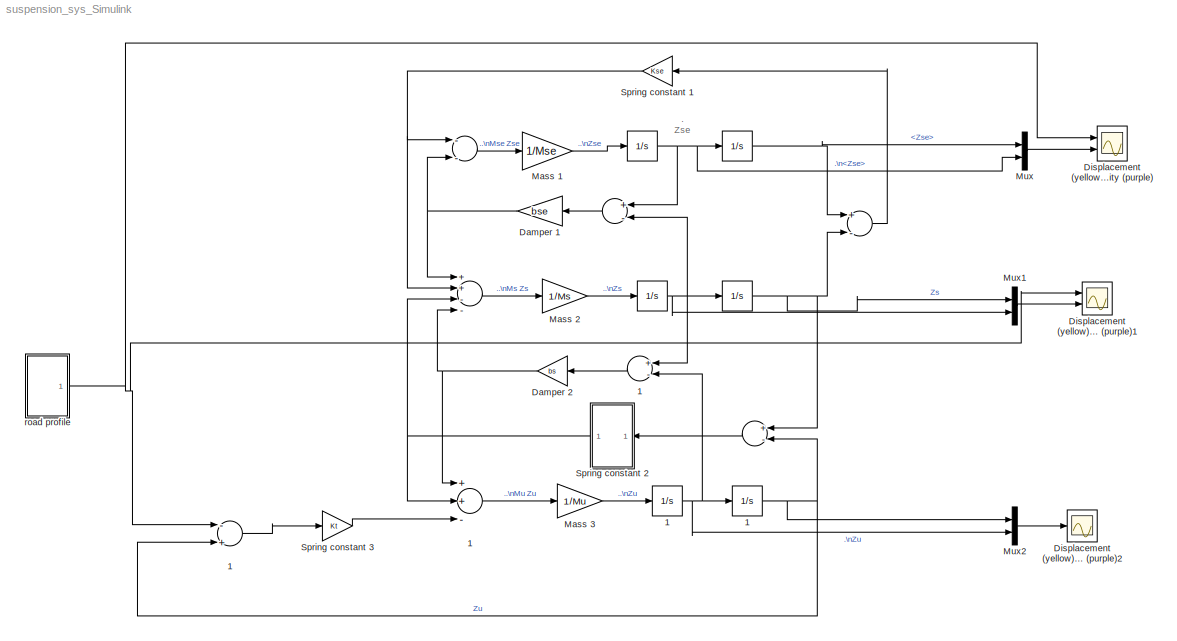
MODEL suspension_sys_Simulink
KIND model
BLOCK [Integrator]  
  Ports = [1, 1]
  SID = 1
BLOCK [Sum]   
  InputSameDT = off
  Inputs = +-
  OutDataTypeStr = Inherit: Inherit via internal rule
  Ports = [2, 1]
  SID = 2
  SaturateOnIntegerOverflow = off
BLOCK [Integrator]      
  Ports = [1, 1]
  SID = 3
BLOCK [Sum]       
  InputSameDT = off
  Inputs = ++--
  OutDataTypeStr = Inherit: Inherit via internal rule
  Ports = [4, 1]
  SID = 4
  SaturateOnIntegerOverflow = off
BLOCK [Sum]        
  InputSameDT = off
  Inputs = --
  OutDataTypeStr = Inherit: Inherit via internal rule
  Ports = [2, 1]
  SID = 5
  SaturateOnIntegerOverflow = off
BLOCK [Sum]         
  InputSameDT = off
  Inputs = +-
  OutDataTypeStr = Inherit: Inherit via internal rule
  Ports = [2, 1]
  SID = 6
  SaturateOnIntegerOverflow = off
BLOCK [Integrator]          
  Ports = [1, 1]
  SID = 7
BLOCK [Integrator]           
  Ports = [1, 1]
  SID = 8
BLOCK [Sum]              
  InputSameDT = off
  Inputs = +-
  OutDataTypeStr = Inherit: Inherit via internal rule
  Ports = [2, 1]
  SID = 9
  SaturateOnIntegerOverflow = off
BLOCK [Sum]              1
  InputSameDT = off
  Inputs = +-
  OutDataTypeStr = Inherit: Inherit via internal rule
  Ports = [2, 1]
  SID = 10
  SaturateOnIntegerOverflow = off
BLOCK [Integrator]           1
  Ports = [1, 1]
  SID = 11
BLOCK [Integrator]          1
  Ports = [1, 1]
  SID = 12
BLOCK [Sum]        1
  InputSameDT = off
  Inputs = -+
  OutDataTypeStr = Inherit: Inherit via internal rule
  Ports = [2, 1]
  SID = 13
  SaturateOnIntegerOverflow = off
BLOCK [Sum]       1
  InputSameDT = off
  Inputs = ++-
  OutDataTypeStr = Inherit: Inherit via internal rule
  Ports = [3, 1]
  SID = 14
  SaturateOnIntegerOverflow = off
BLOCK [Gain] Damper 1
  Gain = bse
  OutDataTypeStr = Inherit: Inherit via internal rule
  ParamDataTypeStr = Inherit: Inherit via internal rule
  SID = 16
  SaturateOnIntegerOverflow = off
BLOCK [Gain] Damper 2
  Gain = bs
  OutDataTypeStr = Inherit: Inherit via internal rule
  ParamDataTypeStr = Inherit: Inherit via internal rule
  SID = 17
  SaturateOnIntegerOverflow = off
BLOCK [Scope] Displacement (yellow)\nVelocity (purple)
  Floating = off
  NumInputPorts = 2
  Ports = [2]
  SID = 18
  ScopeSpecificationString = Simulink.scopes.TimeScopeBlockCfg('CurrentConfiguration', extmgr.ConfigurationSet(extmgr.Configuration('Core','General UI',true),extmgr.Configuration('Core','Source UI',true),extmgr.Configuration('Sources','WiredSimulink',true,'DataLoggingVariableName','ScopeData1','DataLoggingSaveFormat','StructureWithTime','DataLoggingLimitDataPoints',true,'DataLoggingDecimation','1','DataLoggingDecimateData',tr...<+2264ch>
BLOCK [Scope] Displacement (yellow)\nVelocity (purple)1
  Floating = off
  NumInputPorts = 2
  Ports = [2]
  SID = 19
  ScopeSpecificationString = Simulink.scopes.TimeScopeBlockCfg('CurrentConfiguration', extmgr.ConfigurationSet(extmgr.Configuration('Core','General UI',true),extmgr.Configuration('Core','Source UI',true),extmgr.Configuration('Sources','WiredSimulink',true,'DataLoggingSaveFormat','StructureWithTime','DataLoggingLimitDataPoints',true,'DataLoggingDecimation','1','DataLoggingDecimateData',true),extmgr.Configuration('Visuals','Tim...<+2428ch>
BLOCK [Scope] Displacement (yellow)\nVelocity (purple)2
  Floating = off
  NumInputPorts = 1
  Ports = [1]
  SID = 20
  ScopeSpecificationString = Simulink.scopes.TimeScopeBlockCfg('CurrentConfiguration', extmgr.ConfigurationSet(extmgr.Configuration('Core','General UI',true),extmgr.Configuration('Core','Source UI',true),extmgr.Configuration('Sources','WiredSimulink',true,'DataLoggingVariableName','ScopeData2','DataLoggingSaveFormat','StructureWithTime','DataLoggingLimitDataPoints',true,'DataLoggingDecimation','1','DataLoggingDecimateData',tr...<+1760ch>
BLOCK [Gain] Mass 1
  Gain = 1/Mse
  OutDataTypeStr = Inherit: Inherit via internal rule
  ParamDataTypeStr = Inherit: Inherit via internal rule
  SID = 21
  SaturateOnIntegerOverflow = off
BLOCK [Gain] Mass 2
  Gain = 1/Ms
  OutDataTypeStr = Inherit: Inherit via internal rule
  ParamDataTypeStr = Inherit: Inherit via internal rule
  SID = 22
  SaturateOnIntegerOverflow = off
BLOCK [Gain] Mass 3
  Gain = 1/Mu
  OutDataTypeStr = Inherit: Inherit via internal rule
  ParamDataTypeStr = Inherit: Inherit via internal rule
  SID = 23
  SaturateOnIntegerOverflow = off
BLOCK [Mux] Mux
  DisplayOption = bar
  Inputs = 2
  Ports = [2, 1]
  SID = 24
BLOCK [Mux] Mux1
  DisplayOption = bar
  Inputs = 2
  Ports = [2, 1]
  SID = 25
BLOCK [Mux] Mux2
  DisplayOption = bar
  Inputs = 2
  Ports = [2, 1]
  SID = 26
BLOCK [Gain] Spring constant 1
  Gain = Kse
  OutDataTypeStr = Inherit: Inherit via internal rule
  ParamDataTypeStr = Inherit: Inherit via internal rule
  SID = 27
  SaturateOnIntegerOverflow = off
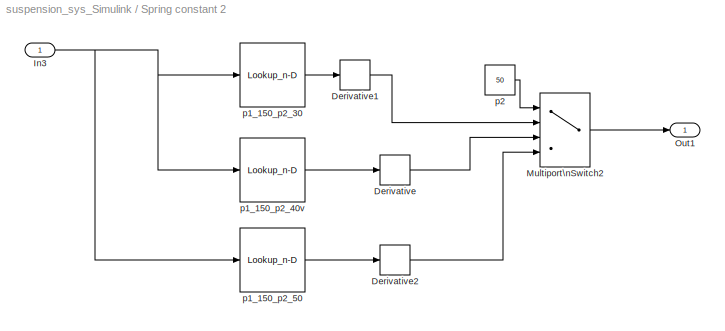
BLOCK [SubSystem] Spring constant 2
  Ports = [1, 1]
  RequestExecContextInheritance = off
  SID = 53
BLOCK [Derivative] Spring constant 2/Derivative
  SID = 47
BLOCK [Derivative] Spring constant 2/Derivative1
  SID = 76
BLOCK [Derivative] Spring constant 2/Derivative2
  SID = 66
BLOCK [Inport] Spring constant 2/In3
  IconDisplay = Port number
  SID = 56
BLOCK [MultiPortSwitch] Spring constant 2/Multiport\nSwitch2
  DataPortIndices = {30,40,50}
  DataPortOrder = Specify indices
  InputSameDT = off
  Ports = [4, 1]
  SID = 51
  SaturateOnIntegerOverflow = off
BLOCK [Outport] Spring constant 2/Out1
  IconDisplay = Port number
  SID = 60
BLOCK [Lookup_n-D] Spring constant 2/p1_150_p2_30
  BreakpointsForDimension1 = p1_150_p2_30v(1:end,1)
  DiagnosticForOutOfRangeInput = Warning
  InternalRulePriority = Speed
  NumberOfTableDimensions = 1
  Ports = [1, 1]
  RndMeth = Simplest
  SID = 75
  Table = p1_150_p2_30v(1:end,2)
  TableDataTypeStr = Inherit: Inherit from 'Table data'
BLOCK [Lookup_n-D] Spring constant 2/p1_150_p2_40v
  BreakpointsForDimension1 = p1_150_p2_40v(1:end,1)
  InternalRulePriority = Speed
  NumberOfTableDimensions = 1
  Ports = [1, 1]
  RndMeth = Simplest
  SID = 46
  Table = p1_150_p2_40v(1:end,2)
  TableDataTypeStr = Inherit: Inherit from 'Table data'
BLOCK [Lookup_n-D] Spring constant 2/p1_150_p2_50
  BreakpointsForDimension1 = p1_150_p2_50v(1:end,1)
  InternalRulePriority = Speed
  NumberOfTableDimensions = 1
  Ports = [1, 1]
  RndMeth = Simplest
  SID = 62
  Table = p1_150_p2_50v(1:end,2)
  TableDataTypeStr = Inherit: Inherit from 'Table data'
BLOCK [Constant] Spring constant 2/p2
  SID = 52
  Value = 50
BLOCK [Gain] Spring constant 3
  Gain = Kt
  OutDataTypeStr = Inherit: Inherit via internal rule
  ParamDataTypeStr = Inherit: Inherit via internal rule
  SID = 29
  SaturateOnIntegerOverflow = off
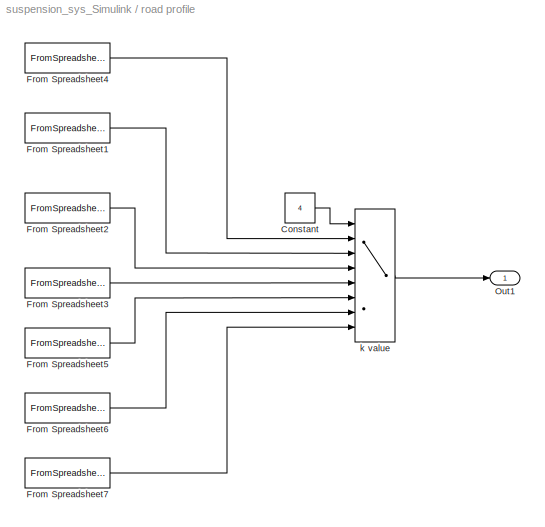
BLOCK [SubSystem] road profile
  Ports = [0, 1]
  RequestExecContextInheritance = off
  SID = 100
BLOCK [Constant] road profile/Constant
  SID = 99
  Value = 4
BLOCK [FromSpreadsheet] road profile/From Spreadsheet1
  FileName = <path>
  Ports = [0, 1]
  SID = 93
  SheetName = k=4
BLOCK [FromSpreadsheet] road profile/From Spreadsheet2
  FileName = <path>
  Ports = [0, 1]
  SID = 94
  SheetName = k=5
BLOCK [FromSpreadsheet] road profile/From Spreadsheet3
  FileName = <path>
  Ports = [0, 1]
  SID = 95
  SheetName = k=6
BLOCK [FromSpreadsheet] road profile/From Spreadsheet4
  FileName = <path>
  Ports = [0, 1]
  SID = 90
  SheetName = k=3
BLOCK [FromSpreadsheet] road profile/From Spreadsheet5
  FileName = <path>
  Ports = [0, 1]
  SID = 96
  SheetName = k=3
BLOCK [FromSpreadsheet] road profile/From Spreadsheet6
  FileName = <path>
  Ports = [0, 1]
  SID = 97
  SheetName = k=8
BLOCK [FromSpreadsheet] road profile/From Spreadsheet7
  FileName = <path>
  Ports = [0, 1]
  SID = 98
  SheetName = k=9
BLOCK [Outport] road profile/Out1
  IconDisplay = Port number
  SID = 101
BLOCK [MultiPortSwitch] road profile/k value
  DataPortIndices = {3,4,5,6,7,8,9}
  DataPortOrder = Specify indices
  InputSameDT = off
  Inputs = 7
  Ports = [8, 1]
  SID = 84
  SaturateOnIntegerOverflow = off
ANNOTATION (root): .\nZse
LINE              1:1 -> Damper 2:1
LINE              :1 -> Spring constant 2:1
NET           1:1 ->              :2,        1:2, Mux2:1
NET           :1 ->              :1,   :2, Mux1:1
NET          1:1 ->              1:2,           1:1, Mux2:2
NET          :1 ->              1:1,           :1,         :2, Mux1:2
LINE         :1 -> Damper 1:1
LINE        1:1 -> Spring constant 3:1
LINE        :1 -> Mass 1:1
LINE       1:1 -> Mass 3:1
LINE       :1 -> Mass 2:1
NET      :1 ->   :1, Mux:1
LINE   :1 -> Spring constant 1:1
NET  :1 ->         :1,      :1, Mux:2
NET Damper 1:1 ->        :2,       :1
NET Damper 2:1 ->       1:1,       :4
LINE Mass 1:1 ->  :1
LINE Mass 2:1 ->          :1
LINE Mass 3:1 ->          1:1
LINE Mux1:1 -> Displacement (yellow)\nVelocity (purple)1:2
LINE Mux2:1 -> Displacement (yellow)\nVelocity (purple)2:1
LINE Mux:1 -> Displacement (yellow)\nVelocity (purple):2
NET Spring constant 1:1 ->        :1,       :2
LINE Spring constant 2/Derivative1:1 -> Spring constant 2/Multiport\nSwitch2:2
LINE Spring constant 2/Derivative2:1 -> Spring constant 2/Multiport\nSwitch2:4
LINE Spring constant 2/Derivative:1 -> Spring constant 2/Multiport\nSwitch2:3
NET Spring constant 2/In3:1 -> Spring constant 2/p1_150_p2_30:1, Spring constant 2/p1_150_p2_40v:1, Spring constant 2/p1_150_p2_50:1
LINE Spring constant 2/Multiport\nSwitch2:1 -> Spring constant 2/Out1:1
LINE Spring constant 2/p1_150_p2_30:1 -> Spring constant 2/Derivative1:1
LINE Spring constant 2/p1_150_p2_40v:1 -> Spring constant 2/Derivative:1
LINE Spring constant 2/p1_150_p2_50:1 -> Spring constant 2/Derivative2:1
LINE Spring constant 2/p2:1 -> Spring constant 2/Multiport\nSwitch2:1
NET Spring constant 2:1 ->       1:2,       :3
LINE Spring constant 3:1 ->       1:3
LINE road profile/Constant:1 -> road profile/k value:1
LINE road profile/From Spreadsheet1:1 -> road profile/k value:3
LINE road profile/From Spreadsheet2:1 -> road profile/k value:4
LINE road profile/From Spreadsheet3:1 -> road profile/k value:5
LINE road profile/From Spreadsheet4:1 -> road profile/k value:2
LINE road profile/From Spreadsheet5:1 -> road profile/k value:6
LINE road profile/From Spreadsheet6:1 -> road profile/k value:7
LINE road profile/From Spreadsheet7:1 -> road profile/k value:8
LINE road profile/k value:1 -> road profile/Out1:1
NET road profile:1 ->        1:1, Displacement (yellow)\nVelocity (purple)1:1, Displacement (yellow)\nVelocity (purple):1
note: NET lines group one-source signal fan-out (src -> all destinations, sorted); 1:1 wires keep LINE
note: 7 file-system paths scrubbed to <path> (not preserved elsewhere — flat text is the only slx artifact)
